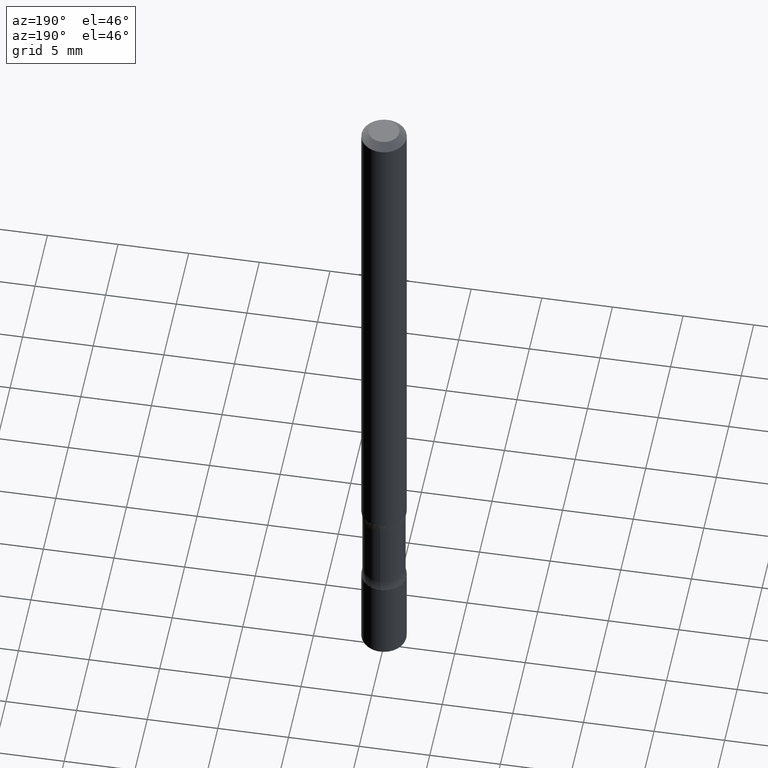
[diagram: clean part render]
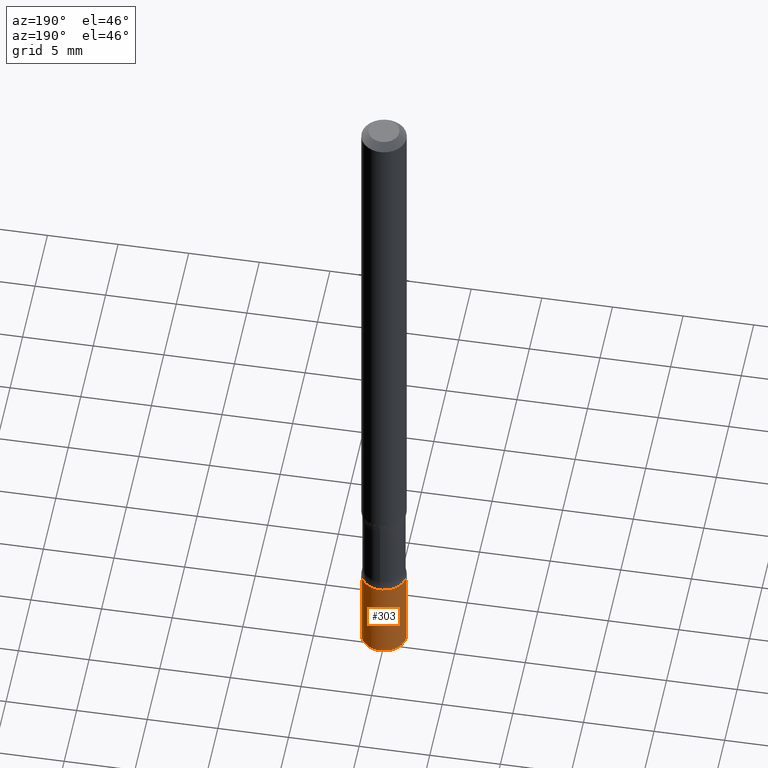
[diagram: same view with one face highlighted and labeled with its STEP entity id]
A machine part, auxiliary view. The second image highlights one B-rep face of the part: STEP entity #303.
In plain terms, the highlighted cylindrical surface (edge-blend (fillet) strip) has radius 1.5875 mm, axis along (-0, 0, 1).
Its self-contained STEP definition (entity closure, byte-faithful):
#14 = CARTESIAN_POINT ( 'NONE',  ( 4.866482924308417164E-29, -6.948047864297853205E-15, -1.989999999999998215 ) ) ;
#40 = CARTESIAN_POINT ( 'NONE',  ( -0.06250000000000062450, -6.084980893786609222E-15, -1.749999999999999112 ) ) ;
#48 = LINE ( 'NONE', #560, #492 ) ;
#49 = CARTESIAN_POINT ( 'NONE',  ( 4.279570410823987363E-29, -6.110092342975501516E-15, -1.749999999999999112 ) ) ;
#60 = EDGE_LOOP ( 'NONE', ( #339, #288, #490, #454 ) ) ;
#67 = CIRCLE ( 'NONE', #207, 0.06250000000000090206 ) ;
#73 = EDGE_CURVE ( 'NONE', #419, #145, #146, .T. ) ;
#91 = CIRCLE ( 'NONE', #221, 0.06250000000000062450 ) ;
#99 = EDGE_CURVE ( 'NONE', #277, #418, #48, .T. ) ;
#115 = CARTESIAN_POINT ( 'NONE',  ( 0.000000000000000000, 0.000000000000000000, 0.000000000000000000 ) ) ;
#145 = VERTEX_POINT ( 'NONE', #40 ) ;
#146 = LINE ( 'NONE', #256, #220 ) ;
#187 = AXIS2_PLACEMENT_3D ( 'NONE', #115, #206, #486 ) ;
#202 = CYLINDRICAL_SURFACE ( 'NONE', #187, 0.06250000000000076328 ) ;
#206 = DIRECTION ( 'NONE',  ( -2.445468806185136597E-29, 3.491481338843145583E-15, 1.000000000000000000 ) ) ;
#207 = AXIS2_PLACEMENT_3D ( 'NONE', #14, #498, #451 ) ;
#220 = VECTOR ( 'NONE', #458, 39.37007874015748143 ) ;
#221 = AXIS2_PLACEMENT_3D ( 'NONE', #49, #291, #414 ) ;
#241 = FACE_OUTER_BOUND ( 'NONE', #60, .T. ) ;
#245 = EDGE_CURVE ( 'NONE', #418, #145, #91, .T. ) ;
#256 = CARTESIAN_POINT ( 'NONE',  ( -0.06250000000000076328, 4.440892098500680396E-16, -3.074334431409353598E-30 ) ) ;
#277 = VERTEX_POINT ( 'NONE', #411 ) ;
#288 = ORIENTED_EDGE ( 'NONE', *, *, #73, .T. ) ;
#291 = DIRECTION ( 'NONE',  ( -2.445468806185136597E-29, 3.491481338843145583E-15, 1.000000000000000000 ) ) ;
#303 = ADVANCED_FACE ( 'NONE', ( #241 ), #202, .T. ) ;
#339 = ORIENTED_EDGE ( 'NONE', *, *, #391, .T. ) ;
#391 = EDGE_CURVE ( 'NONE', #277, #419, #67, .T. ) ;
#411 = CARTESIAN_POINT ( 'NONE',  ( 0.06250000000000111022, -7.384483031653253552E-15, -1.989999999999998215 ) ) ;
#414 = DIRECTION ( 'NONE',  ( 1.000000000000000000, -6.982962677686271444E-15, 0.000000000000000000 ) ) ;
#418 = VERTEX_POINT ( 'NONE', #456 ) ;
#419 = VERTEX_POINT ( 'NONE', #525 ) ;
#451 = DIRECTION ( 'NONE',  ( 1.000000000000000000, -6.982962677686270655E-15, 0.000000000000000000 ) ) ;
#454 = ORIENTED_EDGE ( 'NONE', *, *, #99, .F. ) ;
#456 = CARTESIAN_POINT ( 'NONE',  ( 0.06250000000000062450, -6.546527510330897918E-15, -1.749999999999999112 ) ) ;
#458 = DIRECTION ( 'NONE',  ( -2.445468806185136877E-29, 3.491481338843145188E-15, 1.000000000000000000 ) ) ;
#486 = DIRECTION ( 'NONE',  ( 1.000000000000000000, -6.982962677686266711E-15, 4.876176775795936353E-29 ) ) ;
#490 = ORIENTED_EDGE ( 'NONE', *, *, #245, .F. ) ;
#492 = VECTOR ( 'NONE', #518, 39.37007874015748143 ) ;
#498 = DIRECTION ( 'NONE',  ( -2.445468806185136597E-29, 3.491481338843145583E-15, 1.000000000000000000 ) ) ;
#518 = DIRECTION ( 'NONE',  ( -2.445468806185136877E-29, 3.491481338843145188E-15, 1.000000000000000000 ) ) ;
#525 = CARTESIAN_POINT ( 'NONE',  ( -0.06250000000000111022, -6.503958654447783489E-15, -1.989999999999998215 ) ) ;
#560 = CARTESIAN_POINT ( 'NONE',  ( 0.06250000000000076328, -4.364351673553969942E-16, 3.047610484872497355E-30 ) ) ;